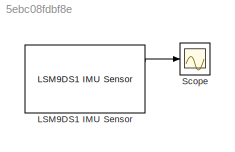
MODEL slx_5ebc08fdbf8e
KIND model
CONFIG AbsTol = auto
CONFIG EnableMultiTasking = on
CONFIG FixedStep = 0.01
CONFIG MaxStep = auto
CONFIG MinStep = auto
CONFIG RelTol = 1e-3
CONFIG SampleTimeConstraint = Unconstrained
CONFIG Solver = FixedStepAuto
CONFIG SolverName = FixedStepAuto
CONFIG StartTime = 0.0
CONFIG StopTime = inf
BLOCK [Reference] LSM9DS1 IMU Sensor  REF=sensehatlib/LSM9DS1 IMU Sensor
  Ports = [0, 3]
  SourceBlock = sensehatlib/LSM9DS1 IMU Sensor
  SourceProductBaseCode = RASPPI
  SourceType = LSM9DS1 9-DoF IMU Sensor
BLOCK [Scope] Scope
  Floating = off
  NumInputPorts = 1
  Ports = [1]
  ScopeSpecificationString = Simulink.scopes.TimeScopeBlockCfg('CurrentConfiguration', extmgr.ConfigurationSet(extmgr.Configuration('Core','General UI',true),extmgr.Configuration('Core','Source UI',true),extmgr.Configuration('Sources','WiredSimulink',true),extmgr.Configuration('Visuals','Time Domain',true,'SerializedDisplays',{struct('MinYLimReal','-2.44305','MaxYLimReal','1.05236','YLabelReal','','MinYLimMag','0.00000','MaxY...<+1392ch>
LINE LSM9DS1 IMU Sensor:1 -> Scope:1
